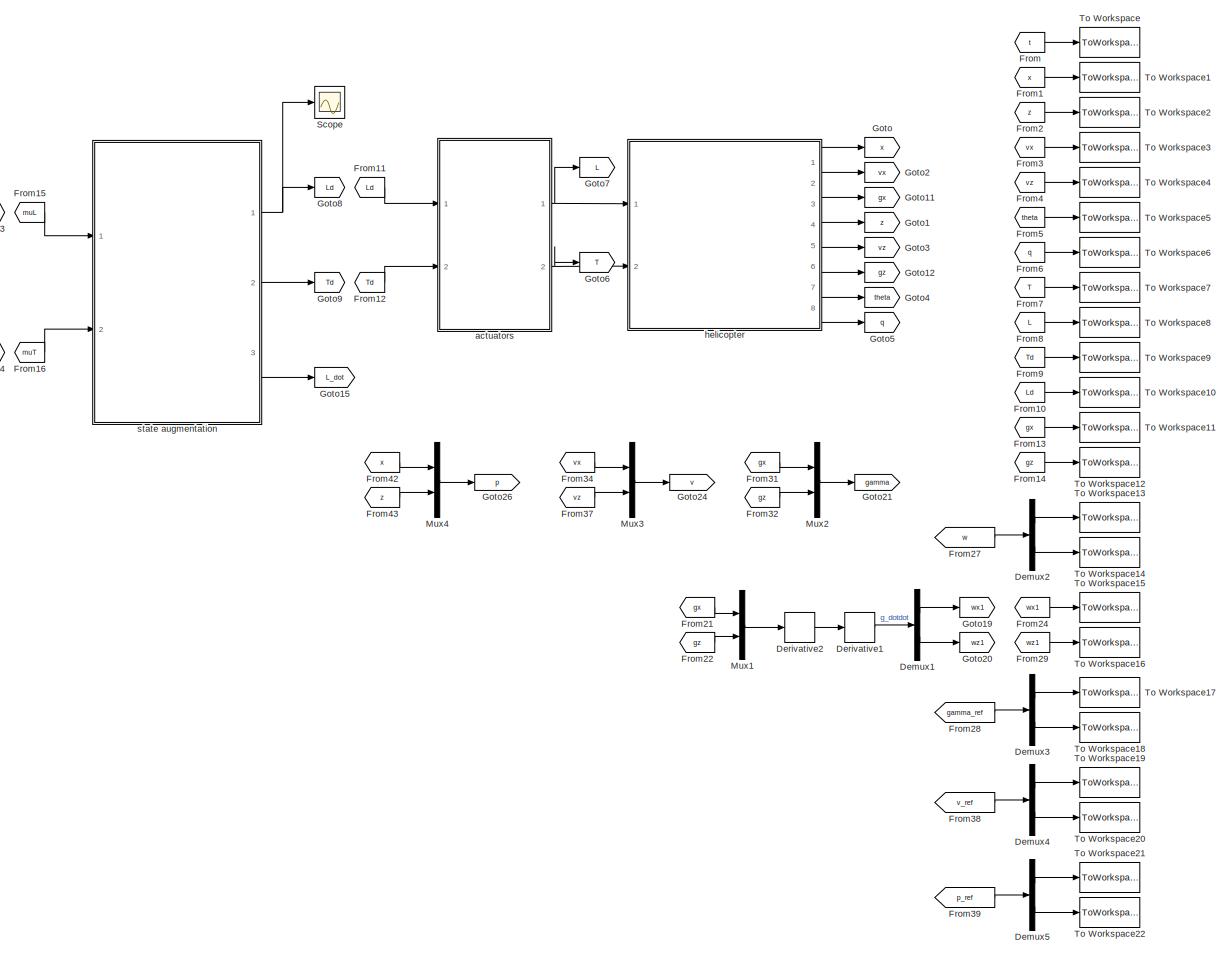
[diagram: root canvas - part 1/3, right side, full height]
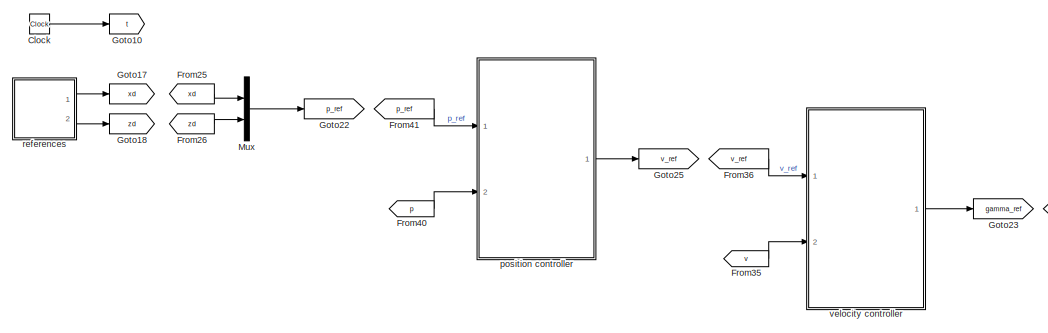
[diagram: root canvas - part 2/3, top left region]
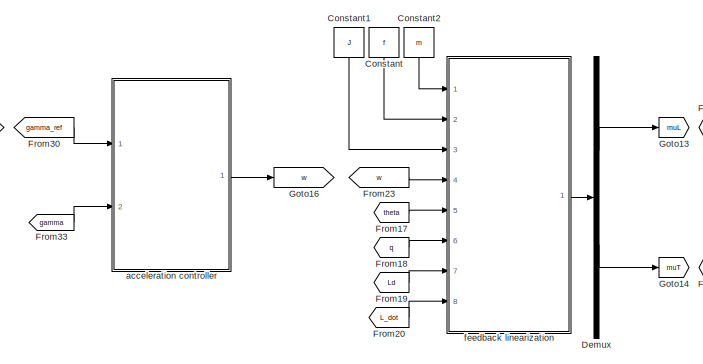
[diagram: root canvas - part 3/3, top center region]
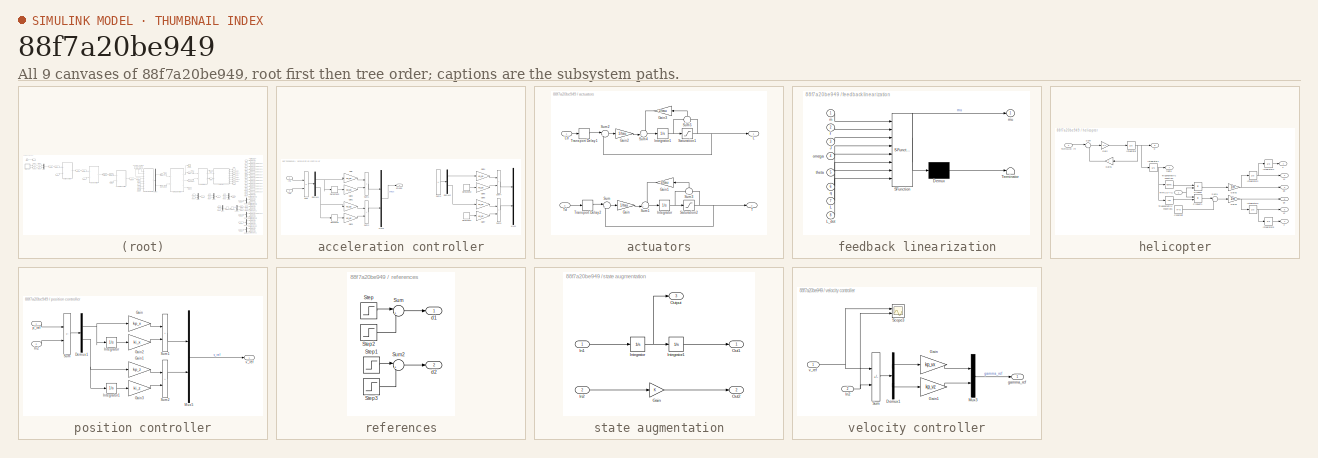
[diagram: thumbnail index - all 9 canvases of the model, root first then tree order]
MODEL slx_88f7a20be949
KIND model
CONFIG AbsTol = auto
CONFIG EnableMultiTasking = on
CONFIG FixedStep = DTsim
CONFIG MaxStep = auto
CONFIG MinStep = auto
CONFIG RelTol = 1e-3
CONFIG SampleTimeConstraint = Unconstrained
CONFIG SolverName = ode3
CONFIG StartTime = 0.0
CONFIG StopTime = Tsim
BLOCK [Clock] Clock
BLOCK [Constant] Constant
  NameLocation = left
  Value = f
BLOCK [Constant] Constant1
  NameLocation = left
  Value = J
BLOCK [Constant] Constant2
  NameLocation = left
  Value = m
BLOCK [Demux] Demux
  Outputs = 2
  Ports = [1, 2]
BLOCK [Demux] Demux1
  Outputs = 2
  Ports = [1, 2]
BLOCK [Demux] Demux2
  Outputs = 2
  Ports = [1, 2]
BLOCK [Demux] Demux3
  Outputs = 2
  Ports = [1, 2]
BLOCK [Demux] Demux4
  Outputs = 2
  Ports = [1, 2]
BLOCK [Demux] Demux5
  Outputs = 2
  Ports = [1, 2]
BLOCK [Derivative] Derivative1
BLOCK [Derivative] Derivative2
BLOCK [From] From
  CloseFcn = tagdialog Close
  GotoTag = t
BLOCK [From] From1
  CloseFcn = tagdialog Close
  GotoTag = x
BLOCK [From] From10
  CloseFcn = tagdialog Close
  GotoTag = Ld
BLOCK [From] From11
  CloseFcn = tagdialog Close
  GotoTag = Ld
BLOCK [From] From12
  CloseFcn = tagdialog Close
  GotoTag = Td
BLOCK [From] From13
  CloseFcn = tagdialog Close
  GotoTag = gx
BLOCK [From] From14
  CloseFcn = tagdialog Close
  GotoTag = gz
BLOCK [From] From15
  CloseFcn = tagdialog Close
  GotoTag = muL
BLOCK [From] From16
  CloseFcn = tagdialog Close
  GotoTag = muT
BLOCK [From] From17
  GotoTag = theta
BLOCK [From] From18
  GotoTag = q
BLOCK [From] From19
  GotoTag = Ld
BLOCK [From] From2
  CloseFcn = tagdialog Close
  GotoTag = z
BLOCK [From] From20
  GotoTag = L_dot
BLOCK [From] From21
  GotoTag = gx
BLOCK [From] From22
  GotoTag = gz
BLOCK [From] From23
  GotoTag = w
BLOCK [From] From24
  GotoTag = wx1
BLOCK [From] From25
  GotoTag = xd
BLOCK [From] From26
  GotoTag = zd
BLOCK [From] From27
  GotoTag = w
BLOCK [From] From28
  GotoTag = gamma_ref
BLOCK [From] From29
  GotoTag = wz1
BLOCK [From] From3
  CloseFcn = tagdialog Close
  GotoTag = vx
BLOCK [From] From30
  GotoTag = gamma_ref
BLOCK [From] From31
  GotoTag = gx
BLOCK [From] From32
  GotoTag = gz
BLOCK [From] From33
  GotoTag = gamma
BLOCK [From] From34
  GotoTag = vx
BLOCK [From] From35
  GotoTag = v
BLOCK [From] From36
  GotoTag = v_ref
BLOCK [From] From37
  GotoTag = vz
BLOCK [From] From38
  GotoTag = v_ref
BLOCK [From] From39
  GotoTag = p_ref
BLOCK [From] From4
  CloseFcn = tagdialog Close
  GotoTag = vz
BLOCK [From] From40
  GotoTag = p
BLOCK [From] From41
  GotoTag = p_ref
BLOCK [From] From42
  GotoTag = x
BLOCK [From] From43
  GotoTag = z
BLOCK [From] From5
  CloseFcn = tagdialog Close
  GotoTag = theta
BLOCK [From] From6
  CloseFcn = tagdialog Close
  GotoTag = q
BLOCK [From] From7
  CloseFcn = tagdialog Close
  GotoTag = T
BLOCK [From] From8
  CloseFcn = tagdialog Close
  GotoTag = L
BLOCK [From] From9
  CloseFcn = tagdialog Close
  GotoTag = Td
BLOCK [Goto] Goto
  GotoTag = x
BLOCK [Goto] Goto1
  GotoTag = z
BLOCK [Goto] Goto10
  GotoTag = t
BLOCK [Goto] Goto11
  GotoTag = gx
BLOCK [Goto] Goto12
  GotoTag = gz
BLOCK [Goto] Goto13
  GotoTag = muL
BLOCK [Goto] Goto14
  GotoTag = muT
BLOCK [Goto] Goto15
  GotoTag = L_dot
BLOCK [Goto] Goto16
  GotoTag = w
BLOCK [Goto] Goto17
  GotoTag = xd
BLOCK [Goto] Goto18
  GotoTag = zd
BLOCK [Goto] Goto19
  GotoTag = wx1
BLOCK [Goto] Goto2
  GotoTag = vx
BLOCK [Goto] Goto20
  GotoTag = wz1
BLOCK [Goto] Goto21
  GotoTag = gamma
BLOCK [Goto] Goto22
  GotoTag = p_ref
BLOCK [Goto] Goto23
  GotoTag = gamma_ref
BLOCK [Goto] Goto24
  GotoTag = v
BLOCK [Goto] Goto25
  GotoTag = v_ref
BLOCK [Goto] Goto26
  GotoTag = p
BLOCK [Goto] Goto3
  GotoTag = vz
BLOCK [Goto] Goto4
  GotoTag = theta
BLOCK [Goto] Goto5
  GotoTag = q
BLOCK [Goto] Goto6
  GotoTag = T
BLOCK [Goto] Goto7
  GotoTag = L
BLOCK [Goto] Goto8
  GotoTag = Ld
BLOCK [Goto] Goto9
  GotoTag = Td
BLOCK [Mux] Mux
  DisplayOption = bar
  Inputs = 2
  Ports = [2, 1]
BLOCK [Mux] Mux1
  DisplayOption = bar
  Inputs = 2
  Ports = [2, 1]
BLOCK [Mux] Mux2
  DisplayOption = bar
  Inputs = 2
  Ports = [2, 1]
BLOCK [Mux] Mux3
  DisplayOption = bar
  Inputs = 2
  Ports = [2, 1]
BLOCK [Mux] Mux4
  DisplayOption = bar
  Inputs = 2
  Ports = [2, 1]
BLOCK [Scope] Scope
  Floating = off
  NumInputPorts = 1
  Ports = [1]
  ScopeSpecificationString = Simulink.scopes.TimeScopeBlockCfg('CurrentConfiguration', extmgr.ConfigurationSet(extmgr.Configuration('Core','General UI',true),extmgr.Configuration('Core','Source UI',true),extmgr.Configuration('Sources','WiredSimulink',true),extmgr.Configuration('Visuals','Time Domain',true,'SerializedDisplays',{struct('MinYLimReal','-469.02926','MaxYLimReal','5202.26336','YLabelReal','','MinYLimMag',' 0.00000'...<+1387ch>
BLOCK [ToWorkspace] To Workspace
  MaxDataPoints = inf
  Ports = [1]
  SampleTime = -1
  VariableName = t
BLOCK [ToWorkspace] To Workspace1
  MaxDataPoints = inf
  Ports = [1]
  SampleTime = -1
  VariableName = x
BLOCK [ToWorkspace] To Workspace10
  MaxDataPoints = inf
  Ports = [1]
  SampleTime = -1
  VariableName = Ld
BLOCK [ToWorkspace] To Workspace11
  MaxDataPoints = inf
  Ports = [1]
  SampleTime = -1
  VariableName = gx
BLOCK [ToWorkspace] To Workspace12
  MaxDataPoints = inf
  Ports = [1]
  SampleTime = -1
  VariableName = gz
BLOCK [ToWorkspace] To Workspace13
  MaxDataPoints = inf
  Ports = [1]
  SampleTime = -1
  VariableName = wx
BLOCK [ToWorkspace] To Workspace14
  MaxDataPoints = inf
  Ports = [1]
  SampleTime = -1
  VariableName = wz
BLOCK [ToWorkspace] To Workspace15
  MaxDataPoints = inf
  Ports = [1]
  SampleTime = -1
  VariableName = wx1
BLOCK [ToWorkspace] To Workspace16
  MaxDataPoints = inf
  Ports = [1]
  SampleTime = -1
  VariableName = wz1
BLOCK [ToWorkspace] To Workspace17
  MaxDataPoints = inf
  Ports = [1]
  SampleTime = -1
  VariableName = gxd
BLOCK [ToWorkspace] To Workspace18
  MaxDataPoints = inf
  Ports = [1]
  SampleTime = -1
  VariableName = gzd
BLOCK [ToWorkspace] To Workspace19
  MaxDataPoints = inf
  Ports = [1]
  SampleTime = -1
  VariableName = vxd
BLOCK [ToWorkspace] To Workspace2
  MaxDataPoints = inf
  Ports = [1]
  SampleTime = -1
  VariableName = z
BLOCK [ToWorkspace] To Workspace20
  MaxDataPoints = inf
  Ports = [1]
  SampleTime = -1
  VariableName = vzd
BLOCK [ToWorkspace] To Workspace21
  MaxDataPoints = inf
  Ports = [1]
  SampleTime = -1
  VariableName = xd
BLOCK [ToWorkspace] To Workspace22
  MaxDataPoints = inf
  Ports = [1]
  SampleTime = -1
  VariableName = zd
BLOCK [ToWorkspace] To Workspace3
  MaxDataPoints = inf
  Ports = [1]
  SampleTime = -1
  VariableName = vx
BLOCK [ToWorkspace] To Workspace4
  MaxDataPoints = inf
  Ports = [1]
  SampleTime = -1
  VariableName = vz
BLOCK [ToWorkspace] To Workspace5
  MaxDataPoints = inf
  Ports = [1]
  SampleTime = -1
  VariableName = theta
BLOCK [ToWorkspace] To Workspace6
  MaxDataPoints = inf
  Ports = [1]
  SampleTime = -1
  VariableName = q
BLOCK [ToWorkspace] To Workspace7
  MaxDataPoints = inf
  Ports = [1]
  SampleTime = -1
  VariableName = T
BLOCK [ToWorkspace] To Workspace8
  MaxDataPoints = inf
  Ports = [1]
  SampleTime = -1
  VariableName = L
BLOCK [ToWorkspace] To Workspace9
  MaxDataPoints = inf
  Ports = [1]
  SampleTime = -1
  VariableName = Td
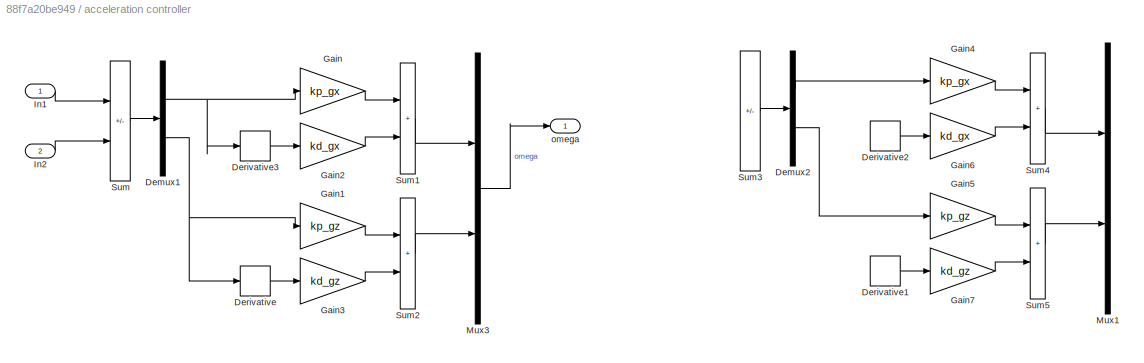
BLOCK [SubSystem] acceleration controller
  Ports = [2, 1]
BLOCK [Demux] acceleration controller/Demux1
  Outputs = 2
  Ports = [1, 2]
BLOCK [Demux] acceleration controller/Demux2
  Commented = on
  Outputs = 2
  Ports = [1, 2]
BLOCK [Derivative] acceleration controller/Derivative
BLOCK [Derivative] acceleration controller/Derivative1
  Commented = on
BLOCK [Derivative] acceleration controller/Derivative2
  Commented = on
BLOCK [Derivative] acceleration controller/Derivative3
BLOCK [Gain] acceleration controller/Gain
  Gain = kp_gx
BLOCK [Gain] acceleration controller/Gain1
  Gain = kp_gz
BLOCK [Gain] acceleration controller/Gain2
  Gain = kd_gx
BLOCK [Gain] acceleration controller/Gain3
  Gain = kd_gz
BLOCK [Gain] acceleration controller/Gain4
  Commented = on
  Gain = kp_gx
BLOCK [Gain] acceleration controller/Gain5
  Commented = on
  Gain = kp_gz
BLOCK [Gain] acceleration controller/Gain6
  Commented = on
  Gain = kd_gx
BLOCK [Gain] acceleration controller/Gain7
  Commented = on
  Gain = kd_gz
BLOCK [Inport] acceleration controller/In1
BLOCK [Inport] acceleration controller/In2
  Port = 2
BLOCK [Mux] acceleration controller/Mux1
  Commented = on
  DisplayOption = bar
  Inputs = 2
  Ports = [2, 1]
BLOCK [Mux] acceleration controller/Mux3
  DisplayOption = bar
  Inputs = 2
  Ports = [2, 1]
BLOCK [Sum] acceleration controller/Sum
  IconShape = rectangular
  Inputs = +-
  Ports = [2, 1]
BLOCK [Sum] acceleration controller/Sum1
  IconShape = rectangular
  Ports = [2, 1]
BLOCK [Sum] acceleration controller/Sum2
  IconShape = rectangular
  Ports = [2, 1]
BLOCK [Sum] acceleration controller/Sum3
  Commented = on
  IconShape = rectangular
  Inputs = +-
  Ports = [2, 1]
BLOCK [Sum] acceleration controller/Sum4
  Commented = on
  IconShape = rectangular
  Ports = [2, 1]
BLOCK [Sum] acceleration controller/Sum5
  Commented = on
  IconShape = rectangular
  Ports = [2, 1]
BLOCK [Outport] acceleration controller/omega
BLOCK [SubSystem] actuators
  Ports = [2, 2]
  TreatAsAtomicUnit = on
BLOCK [Gain] actuators/Gain
  Gain = 1/tau
BLOCK [Gain] actuators/Gain1
  Gain = 2/tau
BLOCK [Gain] actuators/Gain2
  Gain = 1/tau
BLOCK [Gain] actuators/Gain3
  Gain = 2/tau
BLOCK [Integrator] actuators/Integrator
  Ports = [1, 1]
BLOCK [Integrator] actuators/Integrator1
  InitialCondition = m*g
  Ports = [1, 1]
BLOCK [Outport] actuators/L
BLOCK [Inport] actuators/Ld
BLOCK [Saturate] actuators/Saturation1
  LowerLimit = Lmin
  UpperLimit = Lmax
BLOCK [Saturate] actuators/Saturation2
  LowerLimit = Tmin
  UpperLimit = Tmax
BLOCK [Sum] actuators/Sum
  Inputs = |+-
  Ports = [2, 1]
BLOCK [Sum] actuators/Sum1
  Inputs = -+|
  Ports = [2, 1]
BLOCK [Sum] actuators/Sum2
  Inputs = |+-
  Ports = [2, 1]
BLOCK [Sum] actuators/Sum3
  Inputs = +|-
  NameLocation = left
  Ports = [2, 1]
  SaturateOnIntegerOverflow = on
BLOCK [Sum] actuators/Sum4
  Inputs = -+|
  Ports = [2, 1]
BLOCK [Sum] actuators/Sum5
  Inputs = +|-
  NameLocation = left
  Ports = [2, 1]
  SaturateOnIntegerOverflow = on
BLOCK [Outport] actuators/T
  Port = 2
BLOCK [Inport] actuators/Td
  Port = 2
BLOCK [TransportDelay] actuators/Transport Delay1
  DelayTime = DTsim
  InitialOutput = m*g
  Ports = [1, 1]
BLOCK [TransportDelay] actuators/Transport Delay2
  DelayTime = DTsim
  Ports = [1, 1]
BLOCK [SubSystem] feedback linearization
  ErrorFcn = Stateflow.Translate.translate
  PermitHierarchicalResolution = ExplicitOnly
  Ports = [8, 1]
  SFBlockType = MATLAB Function
  TreatAsAtomicUnit = on
BLOCK [Demux] feedback linearization/ Demux 
  Outputs = 1
  Ports = [1, 1]
BLOCK [S-Function] feedback linearization/ SFunction 
  EnableBusSupport = on
  FunctionName = sf_sfun
  PortCounts = [8 2]
  Ports = [8, 2]
  SFcnIsStateOwnerBlock = off
  SFunctionDeploymentMode = off
  Tag = Stateflow S-Function 2
BLOCK [Terminator] feedback linearization/ Terminator 
BLOCK [Inport] feedback linearization/J
  Port = 3
BLOCK [Inport] feedback linearization/L
  Port = 7
BLOCK [Inport] feedback linearization/L_dot
  Port = 8
BLOCK [Inport] feedback linearization/f
  Port = 2
BLOCK [Inport] feedback linearization/m
BLOCK [Outport] feedback linearization/mu
BLOCK [Inport] feedback linearization/omega
  Port = 4
BLOCK [Inport] feedback linearization/q
  Port = 6
BLOCK [Inport] feedback linearization/theta
  Port = 5
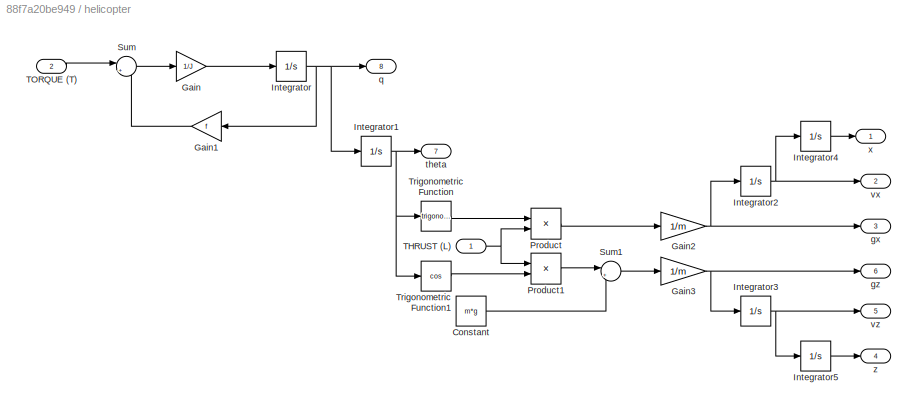
BLOCK [SubSystem] helicopter
  Ports = [2, 8]
  TreatAsAtomicUnit = on
BLOCK [Constant] helicopter/Constant
  Value = m*g
BLOCK [Gain] helicopter/Gain
  Gain = 1/J
BLOCK [Gain] helicopter/Gain1
  Gain = f
BLOCK [Gain] helicopter/Gain2
  Gain = 1/m
BLOCK [Gain] helicopter/Gain3
  Gain = 1/m
BLOCK [Integrator] helicopter/Integrator
  Ports = [1, 1]
BLOCK [Integrator] helicopter/Integrator1
  Ports = [1, 1]
BLOCK [Integrator] helicopter/Integrator2
  Ports = [1, 1]
BLOCK [Integrator] helicopter/Integrator3
  Ports = [1, 1]
BLOCK [Integrator] helicopter/Integrator4
  Ports = [1, 1]
BLOCK [Integrator] helicopter/Integrator5
  Ports = [1, 1]
BLOCK [Product] helicopter/Product
  Ports = [2, 1]
  RndMeth = Zero
BLOCK [Product] helicopter/Product1
  Ports = [2, 1]
  RndMeth = Zero
BLOCK [Sum] helicopter/Sum
  Inputs = |+-
  Ports = [2, 1]
BLOCK [Sum] helicopter/Sum1
  Inputs = |+-
  Ports = [2, 1]
BLOCK [Inport] helicopter/THRUST (L)
BLOCK [Inport] helicopter/TORQUE (T)
  Port = 2
BLOCK [Trigonometry] helicopter/Trigonometric Function
  Ports = [1, 1]
BLOCK [Trigonometry] helicopter/Trigonometric Function1
  Operator = cos
  Ports = [1, 1]
BLOCK [Outport] helicopter/gx
  Port = 3
BLOCK [Outport] helicopter/gz
  Port = 6
BLOCK [Outport] helicopter/q
  Port = 8
BLOCK [Outport] helicopter/theta
  Port = 7
BLOCK [Outport] helicopter/vx
  Port = 2
BLOCK [Outport] helicopter/vz
  Port = 5
BLOCK [Outport] helicopter/x
BLOCK [Outport] helicopter/z
  Port = 4
BLOCK [SubSystem] position controller
  Ports = [2, 1]
BLOCK [Demux] position controller/Demux1
  Outputs = 2
  Ports = [1, 2]
BLOCK [Gain] position controller/Gain
  Gain = kp_x
BLOCK [Gain] position controller/Gain1
  Gain = kp_z
BLOCK [Gain] position controller/Gain2
  Gain = ki_x
BLOCK [Gain] position controller/Gain3
  Gain = ki_z
BLOCK [Inport] position controller/In2
  Port = 2
BLOCK [Integrator] position controller/Integrator
  Ports = [1, 1]
BLOCK [Integrator] position controller/Integrator1
  Ports = [1, 1]
BLOCK [Mux] position controller/Mux5
  DisplayOption = bar
  Inputs = 2
  Ports = [2, 1]
BLOCK [Sum] position controller/Sum
  IconShape = rectangular
  Inputs = +-
  Ports = [2, 1]
BLOCK [Sum] position controller/Sum1
  IconShape = rectangular
  Ports = [2, 1]
BLOCK [Sum] position controller/Sum2
  IconShape = rectangular
  Ports = [2, 1]
BLOCK [Inport] position controller/p_ref
BLOCK [Outport] position controller/v_ref
BLOCK [SubSystem] references
  Ports = [0, 2]
  TreatAsAtomicUnit = on
BLOCK [Step] references/Step
  After = d1_step_final_value
  Before = d1_step_initial_value
  SampleTime = 0
  Time = d1_step_start
BLOCK [Step] references/Step1
  After = d2_step_final_value
  Before = d2_step_initial_value
  SampleTime = 0
  Time = d2_step_start
BLOCK [Step] references/Step2
  After = d1_step_final_value
  SampleTime = 0
  Time = d1_step_stop
BLOCK [Step] references/Step3
  After = d2_step_final_value
  SampleTime = 0
  Time = d2_step_stop
BLOCK [Sum] references/Sum
  Inputs = |+-
  Ports = [2, 1]
BLOCK [Sum] references/Sum2
  Inputs = |+-
  Ports = [2, 1]
BLOCK [Outport] references/d1
BLOCK [Outport] references/d2
  Port = 2
BLOCK [SubSystem] state augmentation
  Ports = [2, 3]
BLOCK [Gain] state augmentation/Gain
BLOCK [Inport] state augmentation/In1
BLOCK [Inport] state augmentation/In2
  Port = 2
BLOCK [Integrator] state augmentation/Integrator
  Ports = [1, 1]
BLOCK [Integrator] state augmentation/Integrator1
  InitialCondition = m*g
  Ports = [1, 1]
BLOCK [Outport] state augmentation/Out1
BLOCK [Outport] state augmentation/Out2
  Port = 2
BLOCK [Outport] state augmentation/Output
  Port = 3
BLOCK [SubSystem] velocity controller
  Ports = [2, 1]
BLOCK [Demux] velocity controller/Demux1
  Outputs = 2
  Ports = [1, 2]
BLOCK [Gain] velocity controller/Gain
  Gain = kp_vx
BLOCK [Gain] velocity controller/Gain1
  Gain = kp_vz
BLOCK [Inport] velocity controller/In2
  Port = 2
BLOCK [Mux] velocity controller/Mux3
  DisplayOption = bar
  Inputs = 2
  Ports = [2, 1]
BLOCK [Scope] velocity controller/Scope3
  Floating = off
  NumInputPorts = 2
  Ports = [2]
  ScopeSpecificationString = Simulink.scopes.TimeScopeBlockCfg('CurrentConfiguration', extmgr.ConfigurationSet(extmgr.Configuration('Core','General UI',true),extmgr.Configuration('Core','Source UI',true),extmgr.Configuration('Sources','WiredSimulink',true,'DataLoggingVariableName','ScopeData1'),extmgr.Configuration('Visuals','Time Domain',true,'SerializedDisplays',{struct('MinYLimReal','-167.33483','MaxYLimReal','55.39324','Y...<+1429ch>
BLOCK [Sum] velocity controller/Sum
  IconShape = rectangular
  Inputs = +-
  Ports = [2, 1]
BLOCK [Outport] velocity controller/gamma_ref
BLOCK [Inport] velocity controller/v_ref
LINE Clock:1 -> Goto10:1
LINE Constant1:1 -> feedback linearization:3
LINE Constant2:1 -> feedback linearization:1
LINE Constant:1 -> feedback linearization:2
LINE Demux1:1 -> Goto19:1
LINE Demux1:2 -> Goto20:1
LINE Demux2:1 -> To Workspace13:1
LINE Demux2:2 -> To Workspace14:1
LINE Demux3:1 -> To Workspace17:1
LINE Demux3:2 -> To Workspace18:1
LINE Demux4:1 -> To Workspace19:1
LINE Demux4:2 -> To Workspace20:1
LINE Demux5:1 -> To Workspace21:1
LINE Demux5:2 -> To Workspace22:1
LINE Demux:1 -> Goto13:1
LINE Demux:2 -> Goto14:1
LINE Derivative1:1 -> Demux1:1
LINE Derivative2:1 -> Derivative1:1
LINE From10:1 -> To Workspace10:1
LINE From11:1 -> actuators:1
LINE From12:1 -> actuators:2
LINE From13:1 -> To Workspace11:1
LINE From14:1 -> To Workspace12:1
LINE From15:1 -> state augmentation:1
LINE From16:1 -> state augmentation:2
LINE From17:1 -> feedback linearization:5
LINE From18:1 -> feedback linearization:6
LINE From19:1 -> feedback linearization:7
LINE From1:1 -> To Workspace1:1
LINE From20:1 -> feedback linearization:8
LINE From21:1 -> Mux1:1
LINE From22:1 -> Mux1:2
LINE From23:1 -> feedback linearization:4
LINE From24:1 -> To Workspace15:1
LINE From25:1 -> Mux:1
LINE From26:1 -> Mux:2
LINE From27:1 -> Demux2:1
LINE From28:1 -> Demux3:1
LINE From29:1 -> To Workspace16:1
LINE From2:1 -> To Workspace2:1
LINE From30:1 -> acceleration controller:1
LINE From31:1 -> Mux2:1
LINE From32:1 -> Mux2:2
LINE From33:1 -> acceleration controller:2
LINE From34:1 -> Mux3:1
LINE From35:1 -> velocity controller:2
LINE From36:1 -> velocity controller:1
LINE From37:1 -> Mux3:2
LINE From38:1 -> Demux4:1
LINE From39:1 -> Demux5:1
LINE From3:1 -> To Workspace3:1
LINE From40:1 -> position controller:2
LINE From41:1 -> position controller:1
LINE From42:1 -> Mux4:1
LINE From43:1 -> Mux4:2
LINE From4:1 -> To Workspace4:1
LINE From5:1 -> To Workspace5:1
LINE From6:1 -> To Workspace6:1
LINE From7:1 -> To Workspace7:1
LINE From8:1 -> To Workspace8:1
LINE From9:1 -> To Workspace9:1
LINE From:1 -> To Workspace:1
LINE Mux1:1 -> Derivative2:1
LINE Mux2:1 -> Goto21:1
LINE Mux3:1 -> Goto24:1
LINE Mux4:1 -> Goto26:1
LINE Mux:1 -> Goto22:1
NET acceleration controller/Demux1:1 -> acceleration controller/Derivative3:1, acceleration controller/Gain:1
NET acceleration controller/Demux1:2 -> acceleration controller/Derivative:1, acceleration controller/Gain1:1
LINE acceleration controller/Demux2:1 -> acceleration controller/Gain4:1
LINE acceleration controller/Demux2:2 -> acceleration controller/Gain5:1
LINE acceleration controller/Derivative1:1 -> acceleration controller/Gain7:1
LINE acceleration controller/Derivative2:1 -> acceleration controller/Gain6:1
LINE acceleration controller/Derivative3:1 -> acceleration controller/Gain2:1
LINE acceleration controller/Derivative:1 -> acceleration controller/Gain3:1
LINE acceleration controller/Gain1:1 -> acceleration controller/Sum2:1
LINE acceleration controller/Gain2:1 -> acceleration controller/Sum1:2
LINE acceleration controller/Gain3:1 -> acceleration controller/Sum2:2
LINE acceleration controller/Gain4:1 -> acceleration controller/Sum4:1
LINE acceleration controller/Gain5:1 -> acceleration controller/Sum5:1
LINE acceleration controller/Gain6:1 -> acceleration controller/Sum4:2
LINE acceleration controller/Gain7:1 -> acceleration controller/Sum5:2
LINE acceleration controller/Gain:1 -> acceleration controller/Sum1:1
LINE acceleration controller/In1:1 -> acceleration controller/Sum:1
LINE acceleration controller/In2:1 -> acceleration controller/Sum:2
LINE acceleration controller/Mux3:1 -> acceleration controller/omega:1
LINE acceleration controller/Sum1:1 -> acceleration controller/Mux3:1
LINE acceleration controller/Sum2:1 -> acceleration controller/Mux3:2
LINE acceleration controller/Sum3:1 -> acceleration controller/Demux2:1
LINE acceleration controller/Sum4:1 -> acceleration controller/Mux1:1
LINE acceleration controller/Sum5:1 -> acceleration controller/Mux1:2
LINE acceleration controller/Sum:1 -> acceleration controller/Demux1:1
LINE acceleration controller:1 -> Goto16:1
LINE actuators/Gain1:1 -> actuators/Sum1:1
LINE actuators/Gain2:1 -> actuators/Sum4:2
LINE actuators/Gain3:1 -> actuators/Sum4:1
LINE actuators/Gain:1 -> actuators/Sum1:2
NET actuators/Integrator1:1 -> actuators/Saturation1:1, actuators/Sum5:1
NET actuators/Integrator:1 -> actuators/Saturation2:1, actuators/Sum3:1
LINE actuators/Ld:1 -> actuators/Transport Delay1:1
NET actuators/Saturation1:1 -> actuators/L:1, actuators/Sum2:2, actuators/Sum5:2
NET actuators/Saturation2:1 -> actuators/Sum3:2, actuators/Sum:2, actuators/T:1
LINE actuators/Sum1:1 -> actuators/Integrator:1
LINE actuators/Sum2:1 -> actuators/Gain2:1
LINE actuators/Sum3:1 -> actuators/Gain1:1
LINE actuators/Sum4:1 -> actuators/Integrator1:1
LINE actuators/Sum5:1 -> actuators/Gain3:1
LINE actuators/Sum:1 -> actuators/Gain:1
LINE actuators/Td:1 -> actuators/Transport Delay2:1
LINE actuators/Transport Delay1:1 -> actuators/Sum2:1
LINE actuators/Transport Delay2:1 -> actuators/Sum:1
NET actuators:1 -> Goto7:1, helicopter:1
NET actuators:2 -> Goto6:1, helicopter:2
LINE feedback linearization:1 -> Demux:1
LINE helicopter/Constant:1 -> helicopter/Sum1:2
LINE helicopter/Gain1:1 -> helicopter/Sum:2
NET helicopter/Gain2:1 -> helicopter/Integrator2:1, helicopter/gx:1
NET helicopter/Gain3:1 -> helicopter/Integrator3:1, helicopter/gz:1
LINE helicopter/Gain:1 -> helicopter/Integrator:1
NET helicopter/Integrator1:1 -> helicopter/Trigonometric Function1:1, helicopter/Trigonometric Function:1, helicopter/theta:1
NET helicopter/Integrator2:1 -> helicopter/Integrator4:1, helicopter/vx:1
NET helicopter/Integrator3:1 -> helicopter/Integrator5:1, helicopter/vz:1
LINE helicopter/Integrator4:1 -> helicopter/x:1
LINE helicopter/Integrator5:1 -> helicopter/z:1
NET helicopter/Integrator:1 -> helicopter/Gain1:1, helicopter/Integrator1:1, helicopter/q:1
LINE helicopter/Product1:1 -> helicopter/Sum1:1
LINE helicopter/Product:1 -> helicopter/Gain2:1
LINE helicopter/Sum1:1 -> helicopter/Gain3:1
LINE helicopter/Sum:1 -> helicopter/Gain:1
NET helicopter/THRUST (L):1 -> helicopter/Product1:1, helicopter/Product:2
LINE helicopter/TORQUE (T):1 -> helicopter/Sum:1
LINE helicopter/Trigonometric Function1:1 -> helicopter/Product1:2
LINE helicopter/Trigonometric Function:1 -> helicopter/Product:1
LINE helicopter:1 -> Goto:1
LINE helicopter:2 -> Goto2:1
LINE helicopter:3 -> Goto11:1
LINE helicopter:4 -> Goto1:1
LINE helicopter:5 -> Goto3:1
LINE helicopter:6 -> Goto12:1
LINE helicopter:7 -> Goto4:1
LINE helicopter:8 -> Goto5:1
NET position controller/Demux1:1 -> position controller/Gain:1, position controller/Integrator:1
NET position controller/Demux1:2 -> position controller/Gain1:1, position controller/Integrator1:1
LINE position controller/Gain1:1 -> position controller/Sum2:1
LINE position controller/Gain2:1 -> position controller/Sum1:2
LINE position controller/Gain3:1 -> position controller/Sum2:2
LINE position controller/Gain:1 -> position controller/Sum1:1
LINE position controller/In2:1 -> position controller/Sum:2
LINE position controller/Integrator1:1 -> position controller/Gain3:1
LINE position controller/Integrator:1 -> position controller/Gain2:1
LINE position controller/Mux5:1 -> position controller/v_ref:1
LINE position controller/Sum1:1 -> position controller/Mux5:1
LINE position controller/Sum2:1 -> position controller/Mux5:2
LINE position controller/Sum:1 -> position controller/Demux1:1
LINE position controller/p_ref:1 -> position controller/Sum:1
LINE position controller:1 -> Goto25:1
LINE references/Step1:1 -> references/Sum2:1
LINE references/Step2:1 -> references/Sum:2
LINE references/Step3:1 -> references/Sum2:2
LINE references/Step:1 -> references/Sum:1
LINE references/Sum2:1 -> references/d2:1
LINE references/Sum:1 -> references/d1:1
LINE references:1 -> Goto17:1
LINE references:2 -> Goto18:1
LINE state augmentation/Gain:1 -> state augmentation/Out2:1
LINE state augmentation/In1:1 -> state augmentation/Integrator:1
LINE state augmentation/In2:1 -> state augmentation/Gain:1
LINE state augmentation/Integrator1:1 -> state augmentation/Out1:1
NET state augmentation/Integrator:1 -> state augmentation/Integrator1:1, state augmentation/Output:1
NET state augmentation:1 -> Goto8:1, Scope:1
LINE state augmentation:2 -> Goto9:1
LINE state augmentation:3 -> Goto15:1
LINE velocity controller/Demux1:1 -> velocity controller/Gain:1
LINE velocity controller/Demux1:2 -> velocity controller/Gain1:1
LINE velocity controller/Gain1:1 -> velocity controller/Mux3:2
LINE velocity controller/Gain:1 -> velocity controller/Mux3:1
NET velocity controller/In2:1 -> velocity controller/Scope3:2, velocity controller/Sum:2
LINE velocity controller/Mux3:1 -> velocity controller/gamma_ref:1
LINE velocity controller/Sum:1 -> velocity controller/Demux1:1
NET velocity controller/v_ref:1 -> velocity controller/Scope3:1, velocity controller/Sum:1
LINE velocity controller:1 -> Goto23:1
note: NET lines group one-source signal fan-out (src -> all destinations, sorted); 1:1 wires keep LINE
CHART feedback linearization states=1 transitions=1
  STATE_LABEL 'eML_blk_kernel()'
  STATE_LABEL 'SCRIPT:\nfunction mu = fcn(m, f, J, omega, theta, q, L, L_dot)\n\n% delta_inv_delta_zero  = [L*f*q/J*sin(2*theta) - L*q^2\n%                     q*f*cos(2*theta) + 2*L_dot*J*q/L];\n\ndelta_inv_delta_zero  = [-L*q^2*cos(2*theta)\n                         q*(2*J*L_dot/L - f + J*q*sin(2*theta))];\n\ndelta_inv = m*[      sin(theta),         cos(theta)\n               (J/L)*cos(theta),  -(J/L)*sin(theta)]; \n\nmu ...<+42ch>'
CHART  states=0 transitions=0
